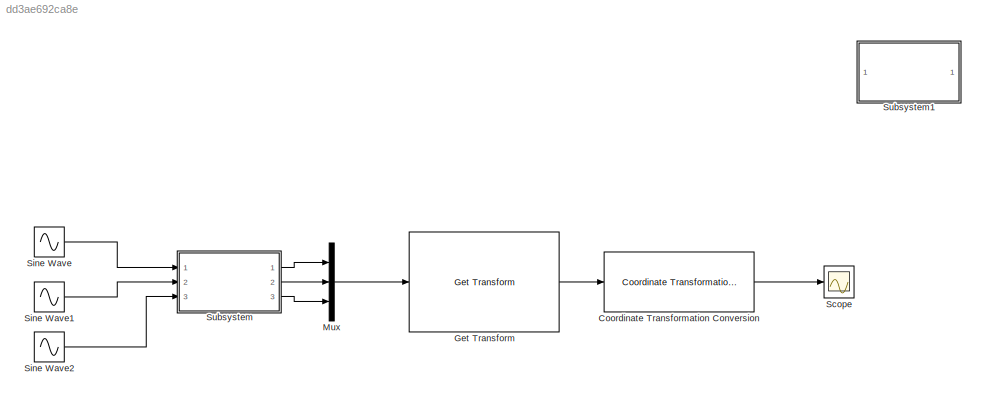
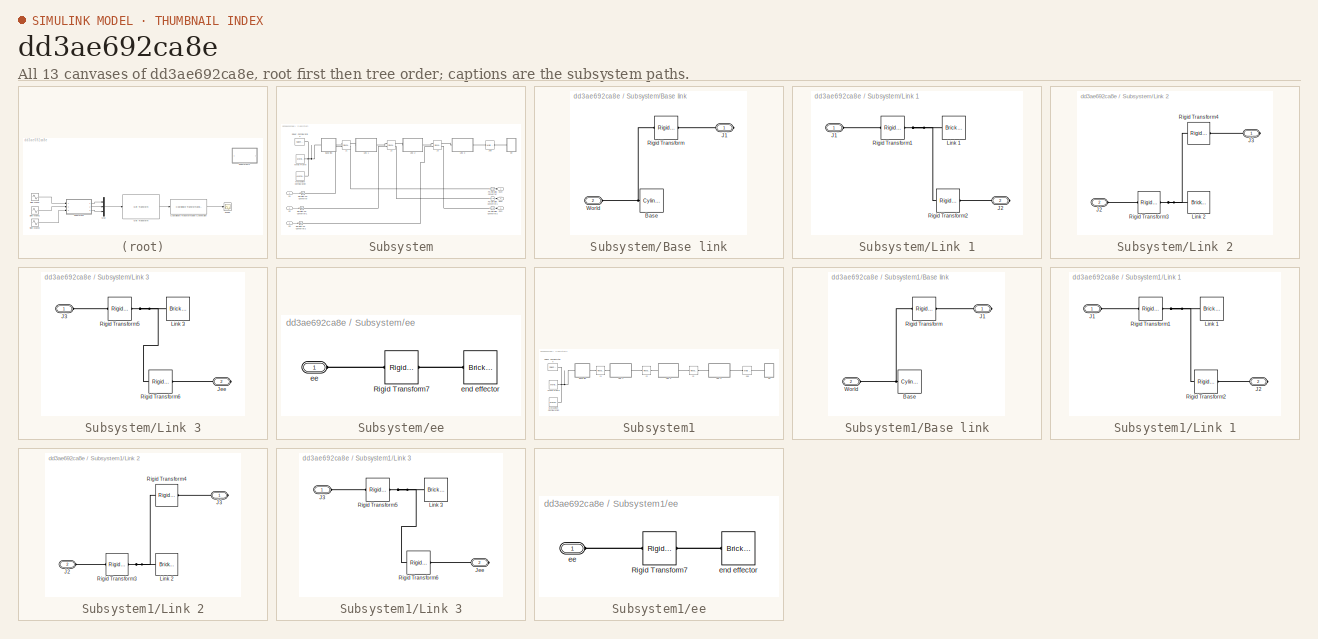
[diagram: thumbnail index - all 13 canvases of the model, root first then tree order]
MODEL slx_dd3ae692ca8e
KIND model
CONFIG AbsTol = auto
CONFIG EnableMultiTasking = off
CONFIG FixedStep = auto
CONFIG MaxStep = auto
CONFIG MinStep = auto
CONFIG RelTol = 1e-3
CONFIG SampleTimeConstraint = Unconstrained
CONFIG SolverName = VariableStepAuto
CONFIG StartTime = 0.0
CONFIG StopTime = 10.0
BLOCK [Reference] Coordinate Transformation Conversion  REF=robotcorelib/Coordinate Transformation Conversion
  Commented = on
  Ports = [1, 1]
  SourceBlock = robotcorelib/Coordinate Transformation Conversion
  SourceProductBaseCode = NV,RO,RR,UV
  SourceType = robotics.slcore.internal.block.CoordinateTransformationConversion
BLOCK [Reference] Get Transform  REF=robotmaniplib/Get Transform
  Commented = on
  Ports = [1, 1]
  SourceBlock = robotmaniplib/Get Transform
  SourceProductBaseCode = RO
  SourceType = Get Transform
BLOCK [Mux] Mux
  Commented = on
  DisplayOption = bar
  Inputs = 3
  Ports = [3, 1]
BLOCK [Scope] Scope
  Commented = on
  Floating = off
  NumInputPorts = 1
  Ports = [1]
  ScopeSpecificationString = Simulink.scopes.TimeScopeBlockCfg('CurrentConfiguration', extmgr.ConfigurationSet(extmgr.Configuration('Core','General UI',true),extmgr.Configuration('Core','Source UI',true),extmgr.Configuration('Sources','WiredSimulink',true),extmgr.Configuration('Visuals','Time Domain',true,'SerializedDisplays',{struct('MinYLimReal','-0.36708','MaxYLimReal','0.5671','YLabelReal','','MinYLimMag','0.00000','MaxYL...<+1436ch>
BLOCK [Sin] Sine Wave
  Amplitude = 0.7
  Commented = on
  Frequency = 0.9
  Phase = 30
  Ports = [0, 1]
  SampleTime = 0
BLOCK [Sin] Sine Wave1
  Amplitude = 1.2
  Commented = on
  Frequency = 1.2
  Phase = 20
  Ports = [0, 1]
  SampleTime = 0
BLOCK [Sin] Sine Wave2
  Amplitude = 2
  Commented = on
  Frequency = 0.75
  Ports = [0, 1]
  SampleTime = 0
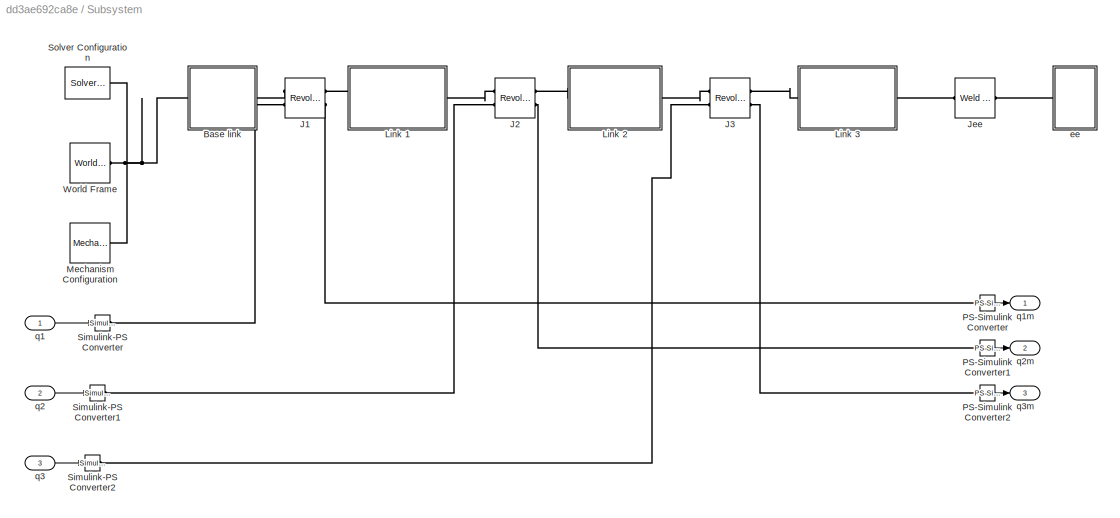
BLOCK [SubSystem] Subsystem
  Commented = on
  Ports = [3, 3]
  RequestExecContextInheritance = off
BLOCK [SubSystem] Subsystem/Base link
  Ports = [0, 0, 0, 0, 0, 1, 1]
  RequestExecContextInheritance = off
BLOCK [Reference] Subsystem/Base link/Base  REF=sm_lib/Body Elements/Cylindrical Solid
  NameLocation = top
  Ports = [0, 0, 0, 0, 0, 0, 1]
  SourceBlock = sm_lib/Body Elements/Cylindrical Solid
  SourceProductBaseCode = MS
  SourceType = Cylindrical Solid
BLOCK [PMIOPort] Subsystem/Base link/J1
  Side = Right
BLOCK [Reference] Subsystem/Base link/Rigid Transform  REF=sm_lib/Frames and
Transforms/Rigid
Transform
  Ports = [0, 0, 0, 0, 0, 1, 1]
  SourceBlock = sm_lib/Frames and\nTransforms/Rigid\nTransform
  SourceProductBaseCode = MS
  SourceType = Rigid\nTransform
BLOCK [PMIOPort] Subsystem/Base link/World
  Port = 2
  Side = Left
BLOCK [Reference] Subsystem/J1  REF=sm_lib/Joints/Revolute Joint
  Ports = [0, 0, 0, 0, 0, 2, 2]
  SourceBlock = sm_lib/Joints/Revolute Joint
  SourceProductBaseCode = MS
  SourceType = Revolute Joint
BLOCK [Reference] Subsystem/J2  REF=sm_lib/Joints/Revolute Joint
  Ports = [0, 0, 0, 0, 0, 2, 2]
  SourceBlock = sm_lib/Joints/Revolute Joint
  SourceProductBaseCode = MS
  SourceType = Revolute Joint
BLOCK [Reference] Subsystem/J3  REF=sm_lib/Joints/Revolute Joint
  Ports = [0, 0, 0, 0, 0, 2, 2]
  SourceBlock = sm_lib/Joints/Revolute Joint
  SourceProductBaseCode = MS
  SourceType = Revolute Joint
BLOCK [Reference] Subsystem/Jee  REF=sm_lib/Joints/Weld Joint
  Ports = [0, 0, 0, 0, 0, 1, 1]
  SourceBlock = sm_lib/Joints/Weld Joint
  SourceProductBaseCode = MS
  SourceType = Weld Joint
BLOCK [SubSystem] Subsystem/Link 1
  Ports = [0, 0, 0, 0, 0, 1, 1]
  RequestExecContextInheritance = off
BLOCK [PMIOPort] Subsystem/Link 1/J1
  Side = Left
BLOCK [PMIOPort] Subsystem/Link 1/J2
  Port = 2
  Side = Right
BLOCK [Reference] Subsystem/Link 1/Link 1  REF=sm_lib/Body Elements/Brick Solid
  NameLocation = top
  Ports = [0, 0, 0, 0, 0, 0, 1]
  SourceBlock = sm_lib/Body Elements/Brick Solid
  SourceProductBaseCode = MS
  SourceType = Brick Solid
BLOCK [Reference] Subsystem/Link 1/Rigid Transform1  REF=sm_lib/Frames and
Transforms/Rigid
Transform
  Ports = [0, 0, 0, 0, 0, 1, 1]
  SourceBlock = sm_lib/Frames and\nTransforms/Rigid\nTransform
  SourceProductBaseCode = MS
  SourceType = Rigid\nTransform
BLOCK [Reference] Subsystem/Link 1/Rigid Transform2  REF=sm_lib/Frames and
Transforms/Rigid
Transform
  Ports = [0, 0, 0, 0, 0, 1, 1]
  SourceBlock = sm_lib/Frames and\nTransforms/Rigid\nTransform
  SourceProductBaseCode = MS
  SourceType = Rigid\nTransform
BLOCK [SubSystem] Subsystem/Link 2
  Ports = [0, 0, 0, 0, 0, 1, 1]
  RequestExecContextInheritance = off
BLOCK [PMIOPort] Subsystem/Link 2/J2
  Port = 2
  Side = Left
BLOCK [PMIOPort] Subsystem/Link 2/J3
  Side = Right
BLOCK [Reference] Subsystem/Link 2/Link 2  REF=sm_lib/Body Elements/Brick Solid
  NameLocation = top
  Ports = [0, 0, 0, 0, 0, 0, 1]
  SourceBlock = sm_lib/Body Elements/Brick Solid
  SourceProductBaseCode = MS
  SourceType = Brick Solid
BLOCK [Reference] Subsystem/Link 2/Rigid Transform3  REF=sm_lib/Frames and
Transforms/Rigid
Transform
  Ports = [0, 0, 0, 0, 0, 1, 1]
  SourceBlock = sm_lib/Frames and\nTransforms/Rigid\nTransform
  SourceProductBaseCode = MS
  SourceType = Rigid\nTransform
BLOCK [Reference] Subsystem/Link 2/Rigid Transform4  REF=sm_lib/Frames and
Transforms/Rigid
Transform
  Ports = [0, 0, 0, 0, 0, 1, 1]
  SourceBlock = sm_lib/Frames and\nTransforms/Rigid\nTransform
  SourceProductBaseCode = MS
  SourceType = Rigid\nTransform
BLOCK [SubSystem] Subsystem/Link 3
  Ports = [0, 0, 0, 0, 0, 1, 1]
  RequestExecContextInheritance = off
BLOCK [PMIOPort] Subsystem/Link 3/J3
  Side = Left
BLOCK [PMIOPort] Subsystem/Link 3/Jee
  Port = 2
  Side = Right
BLOCK [Reference] Subsystem/Link 3/Link 3  REF=sm_lib/Body Elements/Brick Solid
  NameLocation = top
  Ports = [0, 0, 0, 0, 0, 0, 1]
  SourceBlock = sm_lib/Body Elements/Brick Solid
  SourceProductBaseCode = MS
  SourceType = Brick Solid
BLOCK [Reference] Subsystem/Link 3/Rigid Transform5  REF=sm_lib/Frames and
Transforms/Rigid
Transform
  Ports = [0, 0, 0, 0, 0, 1, 1]
  SourceBlock = sm_lib/Frames and\nTransforms/Rigid\nTransform
  SourceProductBaseCode = MS
  SourceType = Rigid\nTransform
BLOCK [Reference] Subsystem/Link 3/Rigid Transform6  REF=sm_lib/Frames and
Transforms/Rigid
Transform
  Ports = [0, 0, 0, 0, 0, 1, 1]
  SourceBlock = sm_lib/Frames and\nTransforms/Rigid\nTransform
  SourceProductBaseCode = MS
  SourceType = Rigid\nTransform
BLOCK [Reference] Subsystem/Mechanism Configuration  REF=sm_lib/Utilities/Mechanism
Configuration
  Ports = [0, 0, 0, 0, 0, 0, 1]
  SourceBlock = sm_lib/Utilities/Mechanism\nConfiguration
  SourceProductBaseCode = MS
  SourceType = Mechanism\nConfiguration
BLOCK [Reference] Subsystem/PS-Simulink Converter  REF=nesl_utility/PS-Simulink
Converter
  Ports = [0, 1, 0, 0, 0, 1]
  SourceBlock = nesl_utility/PS-Simulink\nConverter
  SourceProductBaseCode = PW,SS
  SourceType = PS-Simulink\nConverter
BLOCK [Reference] Subsystem/PS-Simulink Converter1  REF=nesl_utility/PS-Simulink
Converter
  Ports = [0, 1, 0, 0, 0, 1]
  SourceBlock = nesl_utility/PS-Simulink\nConverter
  SourceProductBaseCode = PW,SS
  SourceType = PS-Simulink\nConverter
BLOCK [Reference] Subsystem/PS-Simulink Converter2  REF=nesl_utility/PS-Simulink
Converter
  Ports = [0, 1, 0, 0, 0, 1]
  SourceBlock = nesl_utility/PS-Simulink\nConverter
  SourceProductBaseCode = PW,SS
  SourceType = PS-Simulink\nConverter
BLOCK [Reference] Subsystem/Simulink-PS Converter  REF=nesl_utility/Simulink-PS
Converter
  Ports = [1, 0, 0, 0, 0, 0, 1]
  SourceBlock = nesl_utility/Simulink-PS\nConverter
  SourceProductBaseCode = PW,SS
  SourceType = Simulink-PS\nConverter
BLOCK [Reference] Subsystem/Simulink-PS Converter1  REF=nesl_utility/Simulink-PS
Converter
  Ports = [1, 0, 0, 0, 0, 0, 1]
  SourceBlock = nesl_utility/Simulink-PS\nConverter
  SourceProductBaseCode = PW,SS
  SourceType = Simulink-PS\nConverter
BLOCK [Reference] Subsystem/Simulink-PS Converter2  REF=nesl_utility/Simulink-PS
Converter
  Ports = [1, 0, 0, 0, 0, 0, 1]
  SourceBlock = nesl_utility/Simulink-PS\nConverter
  SourceProductBaseCode = PW,SS
  SourceType = Simulink-PS\nConverter
BLOCK [Reference] Subsystem/Solver Configuration  REF=nesl_utility/Solver
Configuration
  Ports = [0, 0, 0, 0, 0, 0, 1]
  SourceBlock = nesl_utility/Solver\nConfiguration
  SourceProductBaseCode = PW,SS
  SourceType = Solver\nConfiguration
BLOCK [Reference] Subsystem/World Frame  REF=sm_lib/Frames and
Transforms/World Frame
  Ports = [0, 0, 0, 0, 0, 0, 1]
  SourceBlock = sm_lib/Frames and\nTransforms/World Frame
  SourceProductBaseCode = MS
  SourceType = World Frame
BLOCK [SubSystem] Subsystem/ee
  Ports = [0, 0, 0, 0, 0, 1]
  RequestExecContextInheritance = off
BLOCK [Reference] Subsystem/ee/Rigid Transform7  REF=sm_lib/Frames and
Transforms/Rigid
Transform
  Ports = [0, 0, 0, 0, 0, 1, 1]
  SourceBlock = sm_lib/Frames and\nTransforms/Rigid\nTransform
  SourceProductBaseCode = MS
  SourceType = Rigid\nTransform
BLOCK [PMIOPort] Subsystem/ee/ee
  Side = Left
BLOCK [Reference] Subsystem/ee/end effector  REF=sm_lib/Body Elements/Brick Solid
  NameLocation = top
  Ports = [0, 0, 0, 0, 0, 0, 1]
  SourceBlock = sm_lib/Body Elements/Brick Solid
  SourceProductBaseCode = MS
  SourceType = Brick Solid
BLOCK [Inport] Subsystem/q1
BLOCK [Outport] Subsystem/q1m
BLOCK [Inport] Subsystem/q2
  Port = 2
BLOCK [Outport] Subsystem/q2m
  Port = 2
BLOCK [Inport] Subsystem/q3
  Port = 3
BLOCK [Outport] Subsystem/q3m
  Port = 3
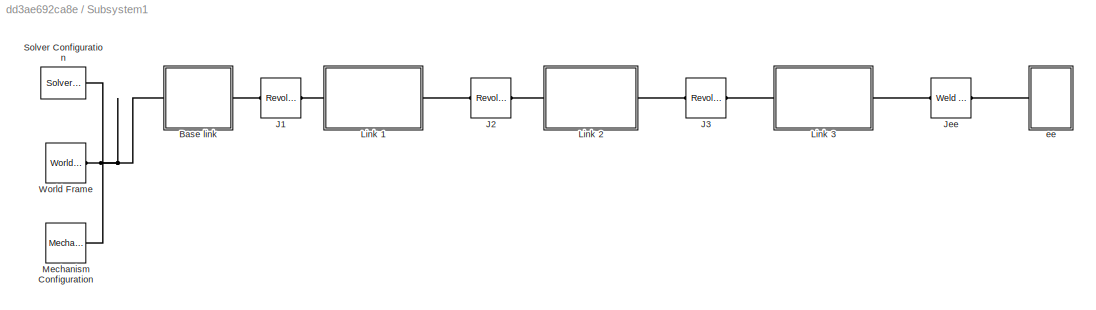
BLOCK [SubSystem] Subsystem1
  Ports = []
  RequestExecContextInheritance = off
BLOCK [SubSystem] Subsystem1/Base link
  Ports = [0, 0, 0, 0, 0, 1, 1]
  RequestExecContextInheritance = off
BLOCK [Reference] Subsystem1/Base link/Base  REF=sm_lib/Body Elements/Cylindrical Solid
  NameLocation = top
  Ports = [0, 0, 0, 0, 0, 0, 1]
  SourceBlock = sm_lib/Body Elements/Cylindrical Solid
  SourceProductBaseCode = MS
  SourceType = Cylindrical Solid
BLOCK [PMIOPort] Subsystem1/Base link/J1
  Side = Right
BLOCK [Reference] Subsystem1/Base link/Rigid Transform  REF=sm_lib/Frames and
Transforms/Rigid
Transform
  Ports = [0, 0, 0, 0, 0, 1, 1]
  SourceBlock = sm_lib/Frames and\nTransforms/Rigid\nTransform
  SourceProductBaseCode = MS
  SourceType = Rigid\nTransform
BLOCK [PMIOPort] Subsystem1/Base link/World
  Port = 2
  Side = Left
BLOCK [Reference] Subsystem1/J1  REF=sm_lib/Joints/Revolute Joint
  Ports = [0, 0, 0, 0, 0, 1, 1]
  SourceBlock = sm_lib/Joints/Revolute Joint
  SourceProductBaseCode = MS
  SourceType = Revolute Joint
BLOCK [Reference] Subsystem1/J2  REF=sm_lib/Joints/Revolute Joint
  Ports = [0, 0, 0, 0, 0, 1, 1]
  SourceBlock = sm_lib/Joints/Revolute Joint
  SourceProductBaseCode = MS
  SourceType = Revolute Joint
BLOCK [Reference] Subsystem1/J3  REF=sm_lib/Joints/Revolute Joint
  Ports = [0, 0, 0, 0, 0, 1, 1]
  SourceBlock = sm_lib/Joints/Revolute Joint
  SourceProductBaseCode = MS
  SourceType = Revolute Joint
BLOCK [Reference] Subsystem1/Jee  REF=sm_lib/Joints/Weld Joint
  Ports = [0, 0, 0, 0, 0, 1, 1]
  SourceBlock = sm_lib/Joints/Weld Joint
  SourceProductBaseCode = MS
  SourceType = Weld Joint
BLOCK [SubSystem] Subsystem1/Link 1
  Ports = [0, 0, 0, 0, 0, 1, 1]
  RequestExecContextInheritance = off
BLOCK [PMIOPort] Subsystem1/Link 1/J1
  Side = Left
BLOCK [PMIOPort] Subsystem1/Link 1/J2
  Port = 2
  Side = Right
BLOCK [Reference] Subsystem1/Link 1/Link 1  REF=sm_lib/Body Elements/Brick Solid
  NameLocation = top
  Ports = [0, 0, 0, 0, 0, 0, 1]
  SourceBlock = sm_lib/Body Elements/Brick Solid
  SourceProductBaseCode = MS
  SourceType = Brick Solid
BLOCK [Reference] Subsystem1/Link 1/Rigid Transform1  REF=sm_lib/Frames and
Transforms/Rigid
Transform
  Ports = [0, 0, 0, 0, 0, 1, 1]
  SourceBlock = sm_lib/Frames and\nTransforms/Rigid\nTransform
  SourceProductBaseCode = MS
  SourceType = Rigid\nTransform
BLOCK [Reference] Subsystem1/Link 1/Rigid Transform2  REF=sm_lib/Frames and
Transforms/Rigid
Transform
  Ports = [0, 0, 0, 0, 0, 1, 1]
  SourceBlock = sm_lib/Frames and\nTransforms/Rigid\nTransform
  SourceProductBaseCode = MS
  SourceType = Rigid\nTransform
BLOCK [SubSystem] Subsystem1/Link 2
  Ports = [0, 0, 0, 0, 0, 1, 1]
  RequestExecContextInheritance = off
BLOCK [PMIOPort] Subsystem1/Link 2/J2
  Port = 2
  Side = Left
BLOCK [PMIOPort] Subsystem1/Link 2/J3
  Side = Right
BLOCK [Reference] Subsystem1/Link 2/Link 2  REF=sm_lib/Body Elements/Brick Solid
  NameLocation = top
  Ports = [0, 0, 0, 0, 0, 0, 1]
  SourceBlock = sm_lib/Body Elements/Brick Solid
  SourceProductBaseCode = MS
  SourceType = Brick Solid
BLOCK [Reference] Subsystem1/Link 2/Rigid Transform3  REF=sm_lib/Frames and
Transforms/Rigid
Transform
  Ports = [0, 0, 0, 0, 0, 1, 1]
  SourceBlock = sm_lib/Frames and\nTransforms/Rigid\nTransform
  SourceProductBaseCode = MS
  SourceType = Rigid\nTransform
BLOCK [Reference] Subsystem1/Link 2/Rigid Transform4  REF=sm_lib/Frames and
Transforms/Rigid
Transform
  Ports = [0, 0, 0, 0, 0, 1, 1]
  SourceBlock = sm_lib/Frames and\nTransforms/Rigid\nTransform
  SourceProductBaseCode = MS
  SourceType = Rigid\nTransform
BLOCK [SubSystem] Subsystem1/Link 3
  Ports = [0, 0, 0, 0, 0, 1, 1]
  RequestExecContextInheritance = off
BLOCK [PMIOPort] Subsystem1/Link 3/J3
  Side = Left
BLOCK [PMIOPort] Subsystem1/Link 3/Jee
  Port = 2
  Side = Right
BLOCK [Reference] Subsystem1/Link 3/Link 3  REF=sm_lib/Body Elements/Brick Solid
  NameLocation = top
  Ports = [0, 0, 0, 0, 0, 0, 1]
  SourceBlock = sm_lib/Body Elements/Brick Solid
  SourceProductBaseCode = MS
  SourceType = Brick Solid
BLOCK [Reference] Subsystem1/Link 3/Rigid Transform5  REF=sm_lib/Frames and
Transforms/Rigid
Transform
  Ports = [0, 0, 0, 0, 0, 1, 1]
  SourceBlock = sm_lib/Frames and\nTransforms/Rigid\nTransform
  SourceProductBaseCode = MS
  SourceType = Rigid\nTransform
BLOCK [Reference] Subsystem1/Link 3/Rigid Transform6  REF=sm_lib/Frames and
Transforms/Rigid
Transform
  Ports = [0, 0, 0, 0, 0, 1, 1]
  SourceBlock = sm_lib/Frames and\nTransforms/Rigid\nTransform
  SourceProductBaseCode = MS
  SourceType = Rigid\nTransform
BLOCK [Reference] Subsystem1/Mechanism Configuration  REF=sm_lib/Utilities/Mechanism
Configuration
  Ports = [0, 0, 0, 0, 0, 0, 1]
  SourceBlock = sm_lib/Utilities/Mechanism\nConfiguration
  SourceProductBaseCode = MS
  SourceType = Mechanism\nConfiguration
BLOCK [Reference] Subsystem1/Solver Configuration  REF=nesl_utility/Solver
Configuration
  Ports = [0, 0, 0, 0, 0, 0, 1]
  SourceBlock = nesl_utility/Solver\nConfiguration
  SourceProductBaseCode = PW,SS
  SourceType = Solver\nConfiguration
BLOCK [Reference] Subsystem1/World Frame  REF=sm_lib/Frames and
Transforms/World Frame
  Ports = [0, 0, 0, 0, 0, 0, 1]
  SourceBlock = sm_lib/Frames and\nTransforms/World Frame
  SourceProductBaseCode = MS
  SourceType = World Frame
BLOCK [SubSystem] Subsystem1/ee
  Ports = [0, 0, 0, 0, 0, 1]
  RequestExecContextInheritance = off
BLOCK [Reference] Subsystem1/ee/Rigid Transform7  REF=sm_lib/Frames and
Transforms/Rigid
Transform
  Ports = [0, 0, 0, 0, 0, 1, 1]
  SourceBlock = sm_lib/Frames and\nTransforms/Rigid\nTransform
  SourceProductBaseCode = MS
  SourceType = Rigid\nTransform
BLOCK [PMIOPort] Subsystem1/ee/ee
  Side = Left
BLOCK [Reference] Subsystem1/ee/end effector  REF=sm_lib/Body Elements/Brick Solid
  NameLocation = top
  Ports = [0, 0, 0, 0, 0, 0, 1]
  SourceBlock = sm_lib/Body Elements/Brick Solid
  SourceProductBaseCode = MS
  SourceType = Brick Solid
LINE Coordinate Transformation Conversion:1 -> Scope:1
LINE Get Transform:1 -> Coordinate Transformation Conversion:1
LINE Mux:1 -> Get Transform:1
LINE Sine Wave1:1 -> Subsystem:2
LINE Sine Wave2:1 -> Subsystem:3
LINE Sine Wave:1 -> Subsystem:1
LINE Subsystem/PS-Simulink Converter1:1 -> Subsystem/q2m:1
LINE Subsystem/PS-Simulink Converter2:1 -> Subsystem/q3m:1
LINE Subsystem/PS-Simulink Converter:1 -> Subsystem/q1m:1
LINE Subsystem/q1:1 -> Subsystem/Simulink-PS Converter:1
LINE Subsystem/q2:1 -> Subsystem/Simulink-PS Converter1:1
LINE Subsystem/q3:1 -> Subsystem/Simulink-PS Converter2:1
LINE Subsystem:1 -> Mux:1
LINE Subsystem:2 -> Mux:2
LINE Subsystem:3 -> Mux:3
PNET net1: Subsystem/Base link/Base:RConn1 -- Subsystem/Base link/Rigid Transform:LConn1 -- Subsystem/Base link/World:RConn1
PLINE Subsystem/Base link/J1:RConn1 -- Subsystem/Base link/Rigid Transform:RConn1
PNET net2: Subsystem/Base link:LConn1 -- Subsystem/Mechanism Configuration:RConn1 -- Subsystem/Solver Configuration:RConn1 -- Subsystem/World Frame:RConn1
PLINE Subsystem/Base link:RConn1 -- Subsystem/J1:LConn1
PLINE Subsystem/J1:LConn2 -- Subsystem/Simulink-PS Converter:RConn1
PLINE Subsystem/J1:RConn1 -- Subsystem/Link 1:LConn1
PLINE Subsystem/J1:RConn2 -- Subsystem/PS-Simulink Converter:LConn1
PLINE Subsystem/J2:LConn1 -- Subsystem/Link 1:RConn1
PLINE Subsystem/J2:LConn2 -- Subsystem/Simulink-PS Converter1:RConn1
PLINE Subsystem/J2:RConn1 -- Subsystem/Link 2:LConn1
PLINE Subsystem/J2:RConn2 -- Subsystem/PS-Simulink Converter1:LConn1
PLINE Subsystem/J3:LConn1 -- Subsystem/Link 2:RConn1
PLINE Subsystem/J3:LConn2 -- Subsystem/Simulink-PS Converter2:RConn1
PLINE Subsystem/J3:RConn1 -- Subsystem/Link 3:LConn1
PLINE Subsystem/J3:RConn2 -- Subsystem/PS-Simulink Converter2:LConn1
PLINE Subsystem/Jee:LConn1 -- Subsystem/Link 3:RConn1
PLINE Subsystem/Jee:RConn1 -- Subsystem/ee:LConn1
PLINE Subsystem/Link 1/J1:RConn1 -- Subsystem/Link 1/Rigid Transform1:LConn1
PLINE Subsystem/Link 1/J2:RConn1 -- Subsystem/Link 1/Rigid Transform2:RConn1
PNET net3: Subsystem/Link 1/Link 1:RConn1 -- Subsystem/Link 1/Rigid Transform1:RConn1 -- Subsystem/Link 1/Rigid Transform2:LConn1
PLINE Subsystem/Link 2/J2:RConn1 -- Subsystem/Link 2/Rigid Transform3:LConn1
PLINE Subsystem/Link 2/J3:RConn1 -- Subsystem/Link 2/Rigid Transform4:RConn1
PNET net4: Subsystem/Link 2/Link 2:RConn1 -- Subsystem/Link 2/Rigid Transform3:RConn1 -- Subsystem/Link 2/Rigid Transform4:LConn1
PLINE Subsystem/Link 3/J3:RConn1 -- Subsystem/Link 3/Rigid Transform5:LConn1
PLINE Subsystem/Link 3/Jee:RConn1 -- Subsystem/Link 3/Rigid Transform6:RConn1
PNET net5: Subsystem/Link 3/Link 3:RConn1 -- Subsystem/Link 3/Rigid Transform5:RConn1 -- Subsystem/Link 3/Rigid Transform6:LConn1
PLINE Subsystem/ee/Rigid Transform7:LConn1 -- Subsystem/ee/ee:RConn1
PLINE Subsystem/ee/Rigid Transform7:RConn1 -- Subsystem/ee/end effector:RConn1
PNET net6: Subsystem1/Base link/Base:RConn1 -- Subsystem1/Base link/Rigid Transform:LConn1 -- Subsystem1/Base link/World:RConn1
PLINE Subsystem1/Base link/J1:RConn1 -- Subsystem1/Base link/Rigid Transform:RConn1
PNET net7: Subsystem1/Base link:LConn1 -- Subsystem1/Mechanism Configuration:RConn1 -- Subsystem1/Solver Configuration:RConn1 -- Subsystem1/World Frame:RConn1
PLINE Subsystem1/Base link:RConn1 -- Subsystem1/J1:LConn1
PLINE Subsystem1/J1:RConn1 -- Subsystem1/Link 1:LConn1
PLINE Subsystem1/J2:LConn1 -- Subsystem1/Link 1:RConn1
PLINE Subsystem1/J2:RConn1 -- Subsystem1/Link 2:LConn1
PLINE Subsystem1/J3:LConn1 -- Subsystem1/Link 2:RConn1
PLINE Subsystem1/J3:RConn1 -- Subsystem1/Link 3:LConn1
PLINE Subsystem1/Jee:LConn1 -- Subsystem1/Link 3:RConn1
PLINE Subsystem1/Jee:RConn1 -- Subsystem1/ee:LConn1
PLINE Subsystem1/Link 1/J1:RConn1 -- Subsystem1/Link 1/Rigid Transform1:LConn1
PLINE Subsystem1/Link 1/J2:RConn1 -- Subsystem1/Link 1/Rigid Transform2:RConn1
PNET net8: Subsystem1/Link 1/Link 1:RConn1 -- Subsystem1/Link 1/Rigid Transform1:RConn1 -- Subsystem1/Link 1/Rigid Transform2:LConn1
PLINE Subsystem1/Link 2/J2:RConn1 -- Subsystem1/Link 2/Rigid Transform3:LConn1
PLINE Subsystem1/Link 2/J3:RConn1 -- Subsystem1/Link 2/Rigid Transform4:RConn1
PNET net9: Subsystem1/Link 2/Link 2:RConn1 -- Subsystem1/Link 2/Rigid Transform3:RConn1 -- Subsystem1/Link 2/Rigid Transform4:LConn1
PLINE Subsystem1/Link 3/J3:RConn1 -- Subsystem1/Link 3/Rigid Transform5:LConn1
PLINE Subsystem1/Link 3/Jee:RConn1 -- Subsystem1/Link 3/Rigid Transform6:RConn1
PNET net10: Subsystem1/Link 3/Link 3:RConn1 -- Subsystem1/Link 3/Rigid Transform5:RConn1 -- Subsystem1/Link 3/Rigid Transform6:LConn1
PLINE Subsystem1/ee/Rigid Transform7:LConn1 -- Subsystem1/ee/ee:RConn1
PLINE Subsystem1/ee/Rigid Transform7:RConn1 -- Subsystem1/ee/end effector:RConn1
note: PNET lines group multi-terminal physical nets as a canonical sorted terminal list (undirected conserving connections); 2-terminal nets keep the pairwise PLINE form
